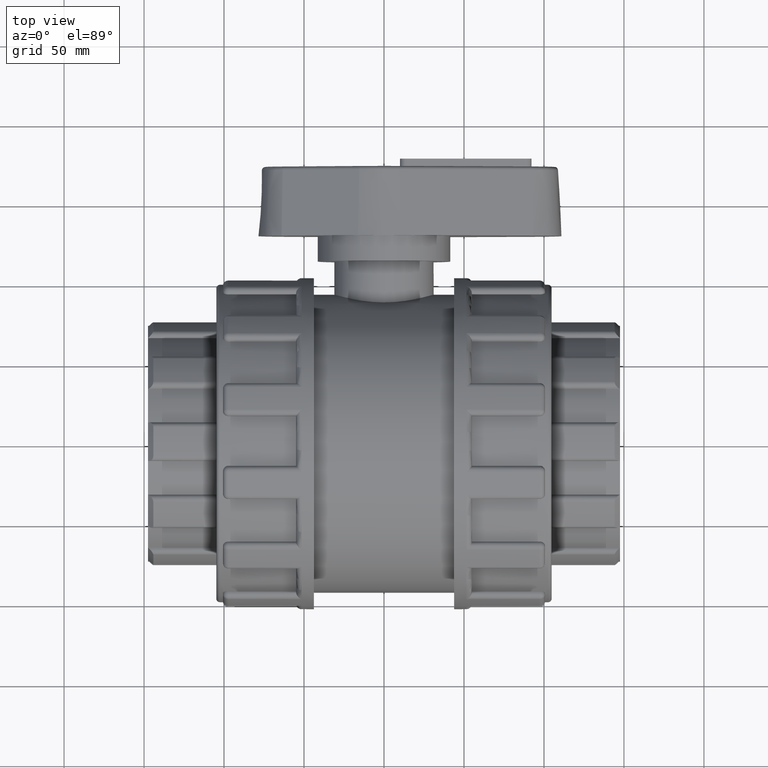
[diagram: clean part render]
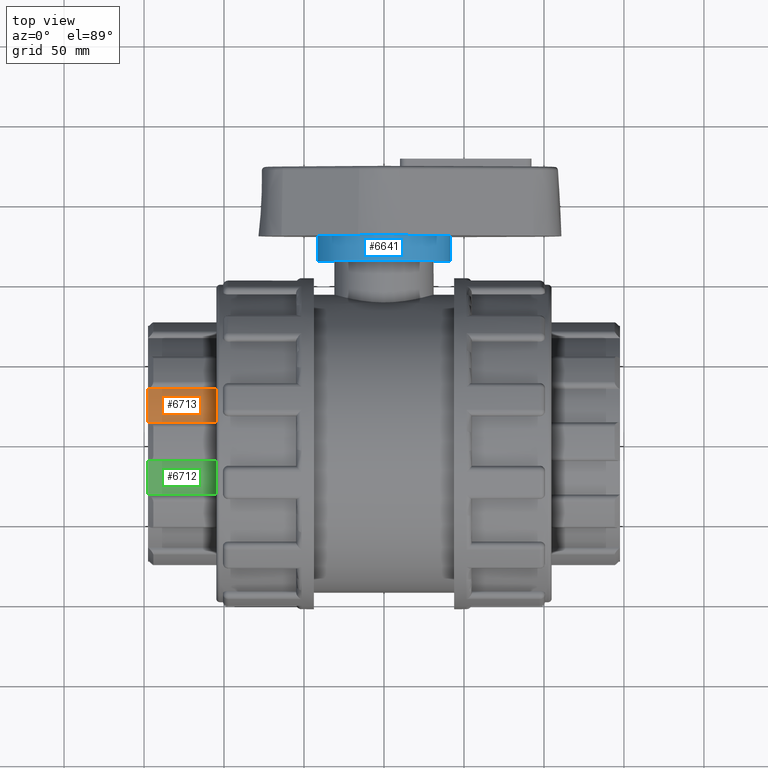
[diagram: same view with three faces highlighted in distinct colors, each labeled with its STEP entity id]
A machine part, top view with three faces highlighted in distinct colors.
Their STEP definitions:

[orange] entity #6713 — the highlighted cylindrical surface (partial cylindrical patch) has radius 73.7482 mm, axis along (-1, 0, 0).
#516=FACE_OUTER_BOUND('',#954,.T.);
#954=EDGE_LOOP('',(#4714,#4715,#4716,#4717));
#1401=LINE('',#11097,#1797);
#1403=LINE('',#11122,#1799);
#1797=VECTOR('',#8433,42.7);
#1799=VECTOR('',#8449,42.7);
#2231=CIRCLE('',#7275,73.74824);
#2232=CIRCLE('',#7276,73.74824);
#2768=VERTEX_POINT('',#11013);
#2779=VERTEX_POINT('',#11079);
#2782=VERTEX_POINT('',#11084);
#2786=VERTEX_POINT('',#11120);
#3480=EDGE_CURVE('',#2782,#2779,#1401,.T.);
#3487=EDGE_CURVE('',#2768,#2786,#1403,.T.);
#3534=EDGE_CURVE('',#2782,#2768,#2231,.T.);
#3535=EDGE_CURVE('',#2779,#2786,#2232,.T.);
#4714=ORIENTED_EDGE('',*,*,#3534,.T.);
#4715=ORIENTED_EDGE('',*,*,#3487,.T.);
#4716=ORIENTED_EDGE('',*,*,#3535,.F.);
#4717=ORIENTED_EDGE('',*,*,#3480,.F.);
#6493=CYLINDRICAL_SURFACE('',#7274,73.74824);
#6713=ADVANCED_FACE('',(#516),#6493,.T.);
#7274=AXIS2_PLACEMENT_3D('',#11277,#8552,#8553);
#7275=AXIS2_PLACEMENT_3D('',#11278,#8554,#8555);
#7276=AXIS2_PLACEMENT_3D('',#11279,#8556,#8557);
#8433=DIRECTION('',(1.,0.,0.));
#8449=DIRECTION('',(1.,0.,0.));
#8552=DIRECTION('center_axis',(-1.,0.,0.));
#8553=DIRECTION('ref_axis',(0.,-0.951056516295154,0.309016994374947));
#8554=DIRECTION('center_axis',(1.,0.,0.));
#8555=DIRECTION('ref_axis',(0.,-1.,0.));
#8556=DIRECTION('center_axis',(1.,0.,0.));
#8557=DIRECTION('ref_axis',(0.,-0.951056516295154,0.309016994374947));
#11013=CARTESIAN_POINT('',(-147.5,12.0657238450151,72.7545270838416));
#11079=CARTESIAN_POINT('',(-104.8,33.0026624173431,65.9517033628737));
#11084=CARTESIAN_POINT('',(-147.5,33.0026624173431,65.9517033628737));
#11097=CARTESIAN_POINT('',(-147.5,33.0026624173431,65.9517033628737));
#11120=CARTESIAN_POINT('',(-104.8,12.0657238450151,72.7545270838416));
#11122=CARTESIAN_POINT('',(-147.5,12.0657238450151,72.7545270838416));
#11277=CARTESIAN_POINT('Origin',(-147.5,0.,0.));
#11278=CARTESIAN_POINT('Origin',(-147.5,0.,0.));
#11279=CARTESIAN_POINT('Origin',(-104.8,0.,0.));

[blue] entity #6641 — the highlighted cylindrical surface (bore or boss wall) has radius 41.4 mm, axis along (-0, 1, 0).
#203=FACE_BOUND('',#882,.T.);
#444=FACE_OUTER_BOUND('',#881,.T.);
#881=EDGE_LOOP('',(#4428));
#882=EDGE_LOOP('',(#4429));
#2130=CIRCLE('',#7096,41.4);
#2131=CIRCLE('',#7102,41.4);
#2657=VERTEX_POINT('',#10411);
#2658=VERTEX_POINT('',#10421);
#3318=EDGE_CURVE('',#2657,#2657,#2130,.T.);
#3322=EDGE_CURVE('',#2658,#2658,#2131,.T.);
#4428=ORIENTED_EDGE('',*,*,#3318,.T.);
#4429=ORIENTED_EDGE('',*,*,#3322,.T.);
#6431=CYLINDRICAL_SURFACE('',#7104,41.4);
#6641=ADVANCED_FACE('',(#444,#203),#6431,.T.);
#7096=AXIS2_PLACEMENT_3D('',#10412,#8119,#8120);
#7102=AXIS2_PLACEMENT_3D('',#10422,#8134,#8135);
#7104=AXIS2_PLACEMENT_3D('',#10425,#8138,#8139);
#8119=DIRECTION('center_axis',(3.2635881871078E-16,-1.,3.71464184313974E-32));
#8120=DIRECTION('ref_axis',(-1.,-4.93931869902617E-16,0.));
#8134=DIRECTION('center_axis',(-3.00313920439603E-16,1.,0.));
#8135=DIRECTION('ref_axis',(1.,3.00313920439603E-16,0.));
#8138=DIRECTION('center_axis',(-3.00313920439603E-16,1.,0.));
#8139=DIRECTION('ref_axis',(-1.,-4.93931869902617E-16,0.));
#10411=CARTESIAN_POINT('',(41.4,129.75,5.07003774847004E-15));
#10412=CARTESIAN_POINT('Origin',(-4.77499133498969E-15,129.75,0.));
#10421=CARTESIAN_POINT('',(-41.4,113.85,0.));
#10422=CARTESIAN_POINT('Origin',(-2.34345952423104E-30,113.85,0.));
#10425=CARTESIAN_POINT('Origin',(-8.88178419700125E-15,143.425,0.));

[green] entity #6712 — the highlighted cylindrical surface (partial cylindrical patch) has radius 73.7482 mm, axis along (-1, 0, 0).
#515=FACE_OUTER_BOUND('',#953,.T.);
#953=EDGE_LOOP('',(#4710,#4711,#4712,#4713));
#1393=LINE('',#11009,#1789);
#1395=LINE('',#11034,#1791);
#1789=VECTOR('',#8393,42.7);
#1791=VECTOR('',#8409,42.7);
#2229=CIRCLE('',#7272,73.74824);
#2230=CIRCLE('',#7273,73.74824);
#2752=VERTEX_POINT('',#10925);
#2763=VERTEX_POINT('',#10991);
#2766=VERTEX_POINT('',#10996);
#2770=VERTEX_POINT('',#11032);
#3459=EDGE_CURVE('',#2766,#2763,#1393,.T.);
#3466=EDGE_CURVE('',#2752,#2770,#1395,.T.);
#3532=EDGE_CURVE('',#2766,#2752,#2229,.T.);
#3533=EDGE_CURVE('',#2763,#2770,#2230,.T.);
#4710=ORIENTED_EDGE('',*,*,#3532,.T.);
#4711=ORIENTED_EDGE('',*,*,#3466,.T.);
#4712=ORIENTED_EDGE('',*,*,#3533,.F.);
#4713=ORIENTED_EDGE('',*,*,#3459,.F.);
#6492=CYLINDRICAL_SURFACE('',#7271,73.74824);
#6712=ADVANCED_FACE('',(#515),#6492,.T.);
#7271=AXIS2_PLACEMENT_3D('',#11274,#8546,#8547);
#7272=AXIS2_PLACEMENT_3D('',#11275,#8548,#8549);
#7273=AXIS2_PLACEMENT_3D('',#11276,#8550,#8551);
#8393=DIRECTION('',(1.,0.,0.));
#8409=DIRECTION('',(1.,0.,0.));
#8546=DIRECTION('center_axis',(-1.,0.,0.));
#8547=DIRECTION('ref_axis',(0.,-0.951056516295154,-0.309016994374948));
#8548=DIRECTION('center_axis',(1.,0.,0.));
#8549=DIRECTION('ref_axis',(0.,-1.,0.));
#8550=DIRECTION('center_axis',(1.,0.,0.));
#8551=DIRECTION('ref_axis',(0.,-0.951056516295154,-0.309016994374948));
#10925=CARTESIAN_POINT('',(-147.5,-33.0026624173431,65.9517033628737));
#10991=CARTESIAN_POINT('',(-104.8,-12.0657238450151,72.7545270838415));
#10996=CARTESIAN_POINT('',(-147.5,-12.0657238450151,72.7545270838415));
#11009=CARTESIAN_POINT('',(-147.5,-12.0657238450151,72.7545270838415));
#11032=CARTESIAN_POINT('',(-104.8,-33.0026624173431,65.9517033628737));
#11034=CARTESIAN_POINT('',(-147.5,-33.0026624173431,65.9517033628737));
#11274=CARTESIAN_POINT('Origin',(-147.5,0.,0.));
#11275=CARTESIAN_POINT('Origin',(-147.5,0.,0.));
#11276=CARTESIAN_POINT('Origin',(-104.8,0.,0.));